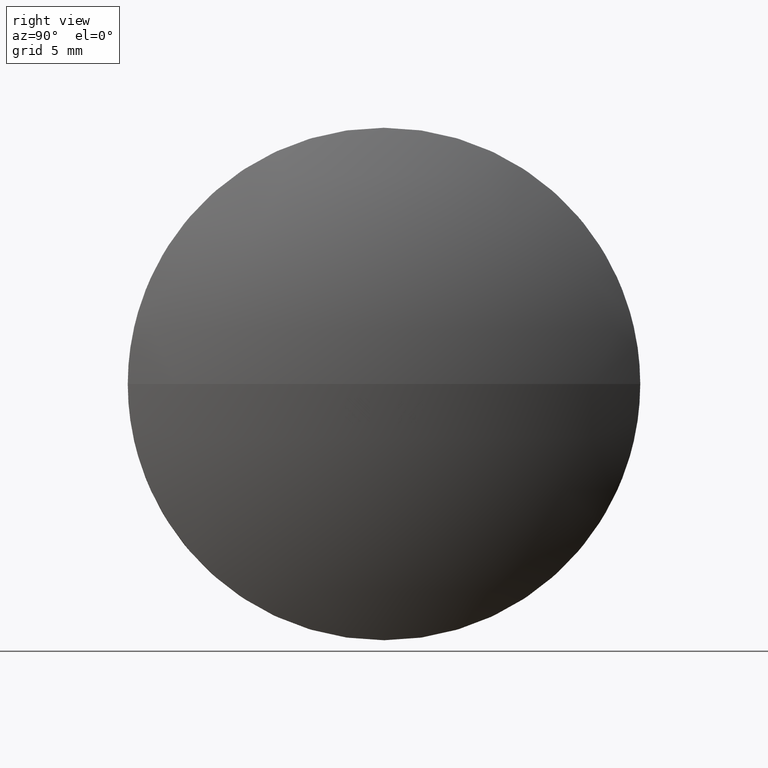
[diagram: clean part render]
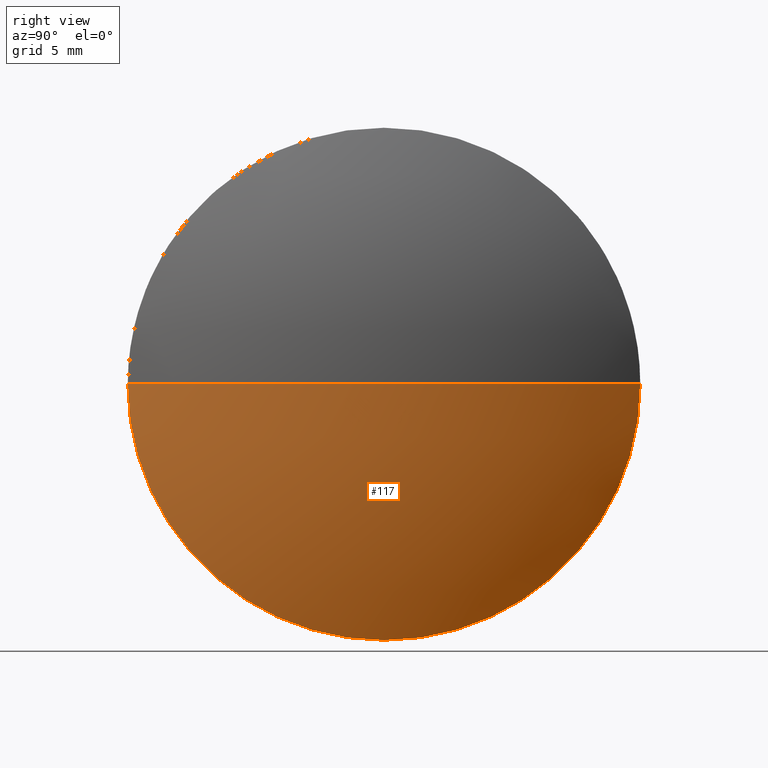
[diagram: same view with one face highlighted and labeled with its STEP entity id]
A machine part, right view. The second image highlights one B-rep face of the part: STEP entity #117.
In plain terms, the highlighted spherical surface has radius 41.2697 mm.
Its self-contained STEP definition (entity closure, byte-faithful):
#3 = AXIS2_PLACEMENT_3D ( 'NONE', #172, #131, #116 ) ;
#8 = DIRECTION ( 'NONE',  ( -1.000000000000000000, -0.0000000000000000000, -0.0000000000000000000 ) ) ;
#16 = VERTEX_POINT ( 'NONE', #148 ) ;
#18 = VERTEX_POINT ( 'NONE', #161 ) ;
#25 = CIRCLE ( 'NONE', #177, 41.26971953578328800 ) ;
#26 = DIRECTION ( 'NONE',  ( 0.0000000000000000000, -1.000000000000000000, -1.224646799147353200E-016 ) ) ;
#27 = AXIS2_PLACEMENT_3D ( 'NONE', #57, #31, #164 ) ;
#29 = CARTESIAN_POINT ( 'NONE',  ( 413.2899099392475400, -10.60755764646727600, 2.449293598294704500E-015 ) ) ;
#31 = DIRECTION ( 'NONE',  ( -1.000000000000000000, -0.0000000000000000000, -0.0000000000000000000 ) ) ;
#32 = DIRECTION ( 'NONE',  ( 0.0000000000000000000, -1.000000000000000000, 0.0000000000000000000 ) ) ;
#35 = ORIENTED_EDGE ( 'NONE', *, *, #60, .F. ) ;
#36 = AXIS2_PLACEMENT_3D ( 'NONE', #56, #8, #104 ) ;
#41 = CIRCLE ( 'NONE', #36, 20.00000000000000400 ) ;
#43 = DIRECTION ( 'NONE',  ( 0.0000000000000000000, 0.0000000000000000000, 1.000000000000000000 ) ) ;
#47 = VERTEX_POINT ( 'NONE', #174 ) ;
#56 = CARTESIAN_POINT ( 'NONE',  ( 413.2899099392475400, -30.60755764646728500, 0.0000000000000000000 ) ) ;
#57 = CARTESIAN_POINT ( 'NONE',  ( 413.2899099392475400, -30.60755764646728500, 0.0000000000000000000 ) ) ;
#60 = EDGE_CURVE ( 'NONE', #18, #179, #25, .T. ) ;
#64 = EDGE_CURVE ( 'NONE', #18, #16, #183, .T. ) ;
#65 = SPHERICAL_SURFACE ( 'NONE', #84, 41.26971953578328800 ) ;
#71 = ORIENTED_EDGE ( 'NONE', *, *, #127, .F. ) ;
#84 = AXIS2_PLACEMENT_3D ( 'NONE', #124, #43, #32 ) ;
#90 = ORIENTED_EDGE ( 'NONE', *, *, #64, .T. ) ;
#100 = EDGE_CURVE ( 'NONE', #179, #47, #151, .T. ) ;
#104 = DIRECTION ( 'NONE',  ( 0.0000000000000000000, 0.0000000000000000000, 1.000000000000000000 ) ) ;
#116 = DIRECTION ( 'NONE',  ( -1.000000000000000000, 0.0000000000000000000, 0.0000000000000000000 ) ) ;
#117 = ADVANCED_FACE ( 'NONE', ( #165 ), #65, .T. ) ;
#124 = CARTESIAN_POINT ( 'NONE',  ( 377.1901904034642700, -30.60755764646726400, 0.0000000000000000000 ) ) ;
#127 = EDGE_CURVE ( 'NONE', #47, #16, #41, .T. ) ;
#130 = ORIENTED_EDGE ( 'NONE', *, *, #100, .F. ) ;
#131 = DIRECTION ( 'NONE',  ( 0.0000000000000000000, 0.0000000000000000000, -1.000000000000000000 ) ) ;
#135 = CARTESIAN_POINT ( 'NONE',  ( 377.1901904034642700, -30.60755764646726400, 0.0000000000000000000 ) ) ;
#148 = CARTESIAN_POINT ( 'NONE',  ( 413.2899099392475400, -50.60755764646727100, 0.0000000000000000000 ) ) ;
#151 = CIRCLE ( 'NONE', #27, 20.00000000000000400 ) ;
#160 = DIRECTION ( 'NONE',  ( 0.0000000000000000000, -1.224646799147353200E-016, 1.000000000000000000 ) ) ;
#161 = CARTESIAN_POINT ( 'NONE',  ( 418.4599099392475500, -30.60755764646726700, 0.0000000000000000000 ) ) ;
#164 = DIRECTION ( 'NONE',  ( 0.0000000000000000000, 0.0000000000000000000, 1.000000000000000000 ) ) ;
#165 = FACE_OUTER_BOUND ( 'NONE', #171, .T. ) ;
#171 = EDGE_LOOP ( 'NONE', ( #35, #90, #71, #130 ) ) ;
#172 = CARTESIAN_POINT ( 'NONE',  ( 377.1901904034642700, -30.60755764646726400, 0.0000000000000000000 ) ) ;
#174 = CARTESIAN_POINT ( 'NONE',  ( 413.2899099392475400, -30.60755764646728100, -20.00000000000000400 ) ) ;
#177 = AXIS2_PLACEMENT_3D ( 'NONE', #135, #160, #26 ) ;
#179 = VERTEX_POINT ( 'NONE', #29 ) ;
#183 = CIRCLE ( 'NONE', #3, 41.26971953578328800 ) ;